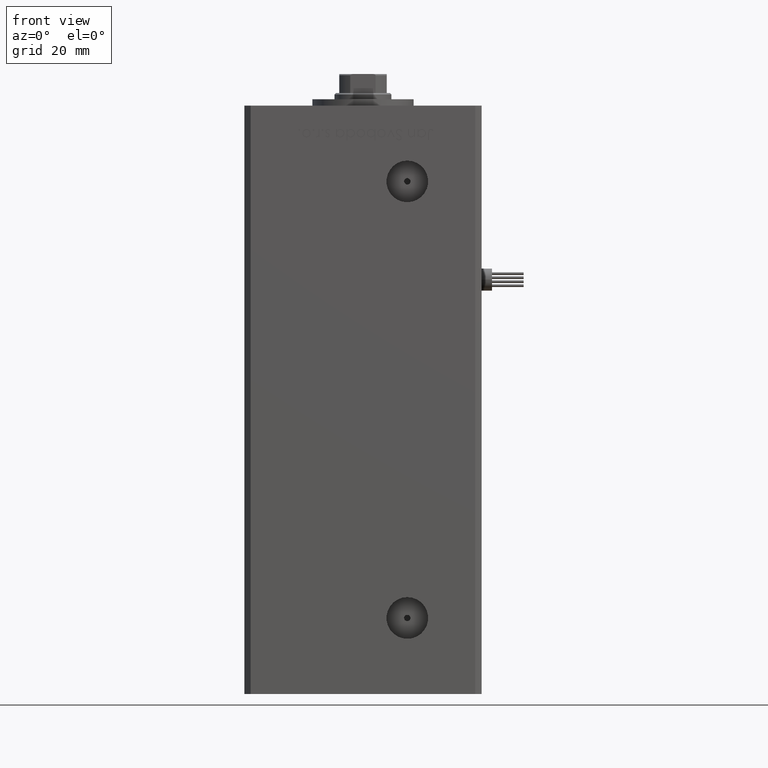
[diagram: clean part render]
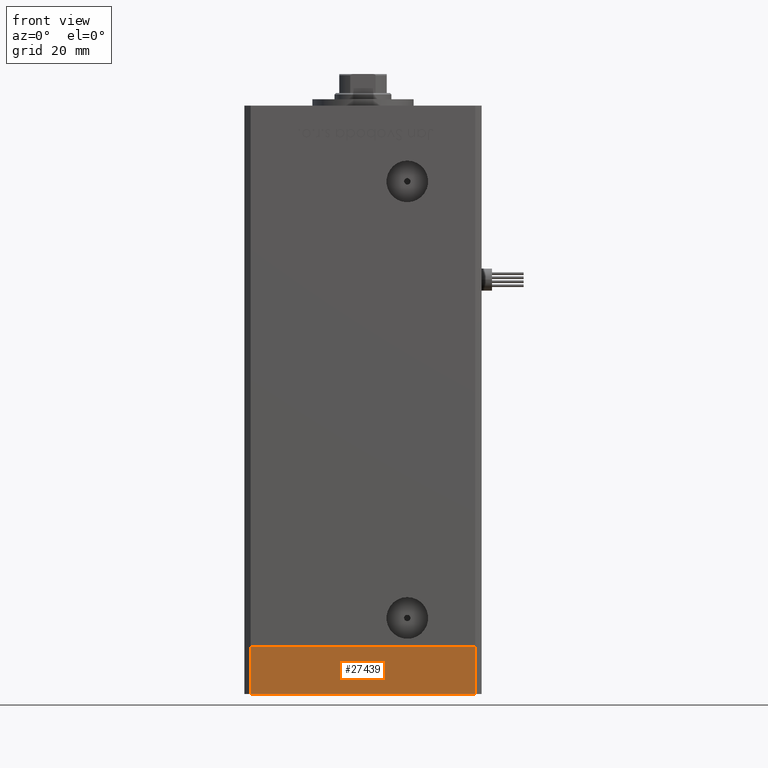
[diagram: same view with one face highlighted and labeled with its STEP entity id]
A machine part, front view. The second image highlights one B-rep face of the part: STEP entity #27439.
In plain terms, the highlighted planar face has unit normal (-0, -1, -0).
Its self-contained STEP definition (entity closure, byte-faithful):
#360 = EDGE_CURVE ( 'NONE', #32829, #17399, #48512, .T. ) ;
#3086 = EDGE_CURVE ( 'NONE', #48051, #17399, #43383, .T. ) ;
#4491 = CARTESIAN_POINT ( 'NONE',  ( -35.49999999999998579, -32.50000000000001421, -15.00000000000000000 ) ) ;
#4610 = DIRECTION ( 'NONE',  ( 1.000000000000000000, 9.773090005503140331E-17, 0.000000000000000000 ) ) ;
#5320 = DIRECTION ( 'NONE',  ( 0.000000000000000000, 0.000000000000000000, 1.000000000000000000 ) ) ;
#5884 = CARTESIAN_POINT ( 'NONE',  ( 35.50000000000000711, -32.50000000000000711, -15.00000000000000000 ) ) ;
#6680 = VECTOR ( 'NONE', #5320, 1000.000000000000000 ) ;
#9224 = LINE ( 'NONE', #4491, #6680 ) ;
#9528 = PLANE ( 'NONE',  #26866 ) ;
#17399 = VERTEX_POINT ( 'NONE', #51824 ) ;
#17711 = CARTESIAN_POINT ( 'NONE',  ( 35.50000000000000711, -32.50000000000000711, -15.00000000000000000 ) ) ;
#17869 = DIRECTION ( 'NONE',  ( 9.773090005503140331E-17, -1.000000000000000000, 0.000000000000000000 ) ) ;
#18073 = EDGE_LOOP ( 'NONE', ( #37951, #48686, #32567, #38957 ) ) ;
#18149 = CARTESIAN_POINT ( 'NONE',  ( -35.49999999999998579, -32.50000000000001421, -15.00000000000000000 ) ) ;
#20160 = VECTOR ( 'NONE', #51478, 1000.000000000000000 ) ;
#21688 = VECTOR ( 'NONE', #4610, 1000.000000000000000 ) ;
#22056 = FACE_OUTER_BOUND ( 'NONE', #18073, .T. ) ;
#23430 = CARTESIAN_POINT ( 'NONE',  ( -35.49999999999998579, -32.50000000000001421, 0.000000000000000000 ) ) ;
#26341 = CARTESIAN_POINT ( 'NONE',  ( -35.49999999999998579, -32.50000000000001421, -15.00000000000000000 ) ) ;
#26866 = AXIS2_PLACEMENT_3D ( 'NONE', #18149, #17869, #35190 ) ;
#27219 = VECTOR ( 'NONE', #52420, 1000.000000000000000 ) ;
#27439 = ADVANCED_FACE ( 'NONE', ( #22056 ), #9528, .T. ) ;
#31960 = VERTEX_POINT ( 'NONE', #39514 ) ;
#32567 = ORIENTED_EDGE ( 'NONE', *, *, #52748, .T. ) ;
#32829 = VERTEX_POINT ( 'NONE', #23430 ) ;
#35008 = LINE ( 'NONE', #26341, #21688 ) ;
#35190 = DIRECTION ( 'NONE',  ( 1.000000000000000000, 9.773090005503140331E-17, 0.000000000000000000 ) ) ;
#37951 = ORIENTED_EDGE ( 'NONE', *, *, #360, .F. ) ;
#38957 = ORIENTED_EDGE ( 'NONE', *, *, #3086, .T. ) ;
#39514 = CARTESIAN_POINT ( 'NONE',  ( -35.49999999999998579, -32.50000000000001421, -15.00000000000000000 ) ) ;
#40870 = EDGE_CURVE ( 'NONE', #31960, #32829, #9224, .T. ) ;
#43383 = LINE ( 'NONE', #17711, #20160 ) ;
#48051 = VERTEX_POINT ( 'NONE', #5884 ) ;
#48512 = LINE ( 'NONE', #49334, #27219 ) ;
#48686 = ORIENTED_EDGE ( 'NONE', *, *, #40870, .F. ) ;
#49334 = CARTESIAN_POINT ( 'NONE',  ( -35.49999999999998579, -32.50000000000001421, 0.000000000000000000 ) ) ;
#51478 = DIRECTION ( 'NONE',  ( 0.000000000000000000, 0.000000000000000000, 1.000000000000000000 ) ) ;
#51824 = CARTESIAN_POINT ( 'NONE',  ( 35.50000000000000711, -32.50000000000000711, 0.000000000000000000 ) ) ;
#52420 = DIRECTION ( 'NONE',  ( 1.000000000000000000, 9.773090005503140331E-17, 0.000000000000000000 ) ) ;
#52748 = EDGE_CURVE ( 'NONE', #31960, #48051, #35008, .T. ) ;